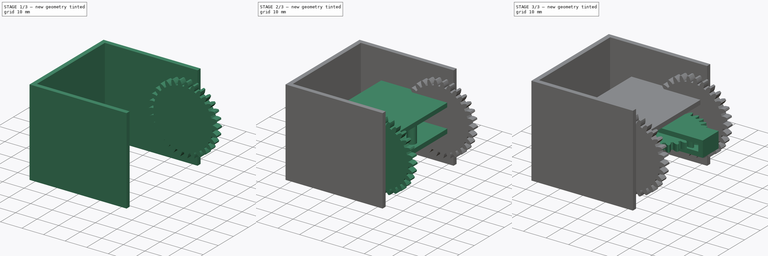
[diagram: build sequence overview — one tinted view per stage of 3, left to right]
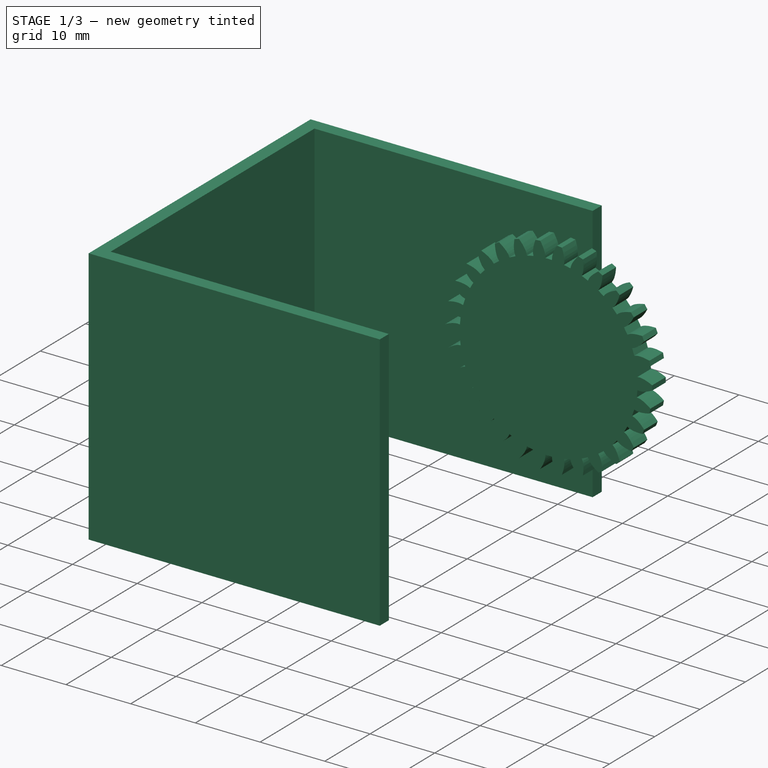
[diagram: stage 1 of 3 — iso view after this stage's code; geometry added in this stage tinted green]
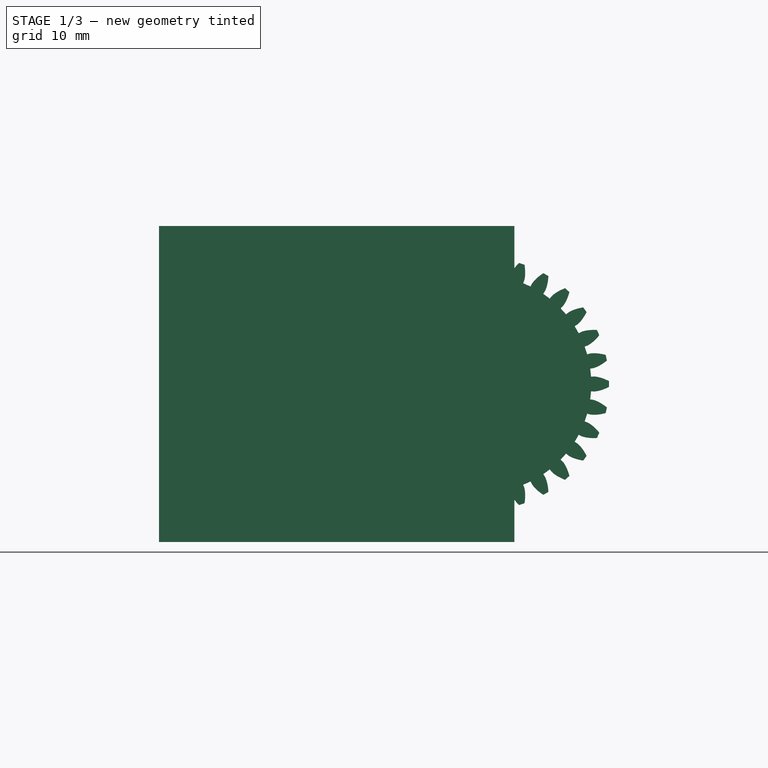
[diagram: stage 1 of 3 — front view after this stage's code; geometry added in this stage tinted green]
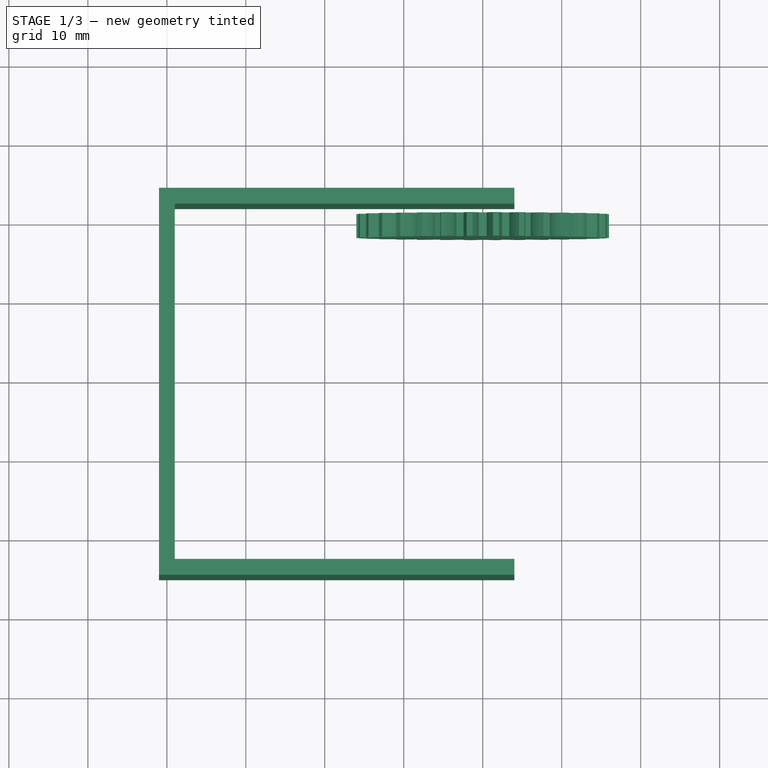
[diagram: stage 1 of 3 — top view after this stage's code; geometry added in this stage tinted green]
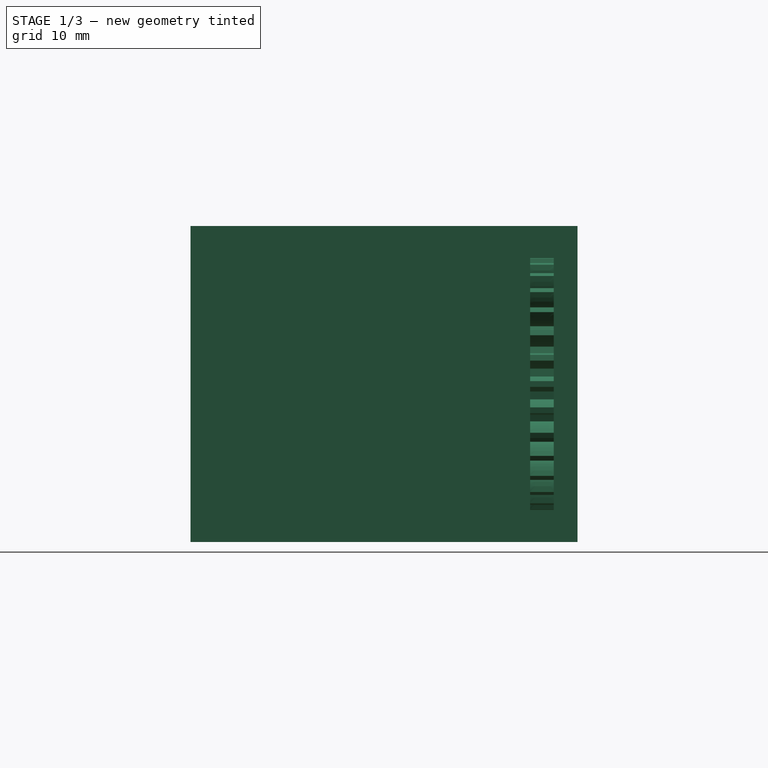
[diagram: stage 1 of 3 — right view after this stage's code; geometry added in this stage tinted green]
FCSTD DOCUMENT  (FreeCAD 0.20R29177 (Git))
Label: testFem
License: All rights reserved
LicenseURL: http://en.wikipedia.org/wiki/All_rights_reserved
objects: Part::FeaturePython×3, Sketcher::SketchObject×3, Part::Extrusion×3, Part::Cylinder×1
note: 10 computed .brp shape members not serialized (recipe doc carries the construction recipe); baked Part::Feature solids carry a one-line shape summary decoded from their .brp

FEATURE [Part::FeaturePython] InvoluteGear002  # WARN: FeaturePython — macro-defined, semantics opaque (R4)
  AttacherType = Attacher::AttachEngine3D
  Placement = pos=(0,18,1.39e-14) rot=(-1,0,0;1.5708rad)
  angular_backlash = 0
  backlash = 0
  beta = 0
  clearance = 0.25
  da = 32
  df = 27.5
  double_helix = false
  dw = 30
  head = 0
  head_fillet = 0
  height = 3
  module = 1
  numpoints = 6
  pressure_angle = 20
  properties_from_tool = false
  reversed_backlash = false
  root_fillet = 0
  shift = 0
  simple = false
  teeth = 30
  transverse_pitch = 3.14159
  undercut = false
  version = 0.0.4
  expr: angular_backlash = backlash / dw * 360° / pi
  expr: dw = teeth * module
FEATURE [Sketcher::SketchObject] Sketch002
  FullyConstrained = false
  sketch-geometry (8):
    g0: LineSegment StartX=4 StartY=22 StartZ=0 EndX=4 EndY=24 EndZ=0
    g1: LineSegment StartX=-39 StartY=-23 StartZ=0 EndX=4 EndY=-23 EndZ=0
    g2: LineSegment StartX=4 StartY=-23 StartZ=0 EndX=4 EndY=-25 EndZ=0
    g3: LineSegment StartX=4 StartY=-25 StartZ=0 EndX=-41 EndY=-25 EndZ=0
    g4: LineSegment StartX=-41 StartY=-25 StartZ=0 EndX=-41 EndY=24 EndZ=0
    g5: LineSegment StartX=-41 StartY=24 StartZ=0 EndX=4 EndY=24 EndZ=0
    g6: LineSegment StartX=-39 StartY=-23 StartZ=0 EndX=-39 EndY=22 EndZ=0
    g7: LineSegment StartX=-39 StartY=22 StartZ=0 EndX=4 EndY=22 EndZ=0
  constraints (16):
    c: Vertical(g0)
    c: Horizontal(g1)
    c: Coincident(g1,g2)
    c: Vertical(g2)
    c: Coincident(g2,g3)
    c: Horizontal(g3)
    c: Coincident(g3,g4)
    c: Vertical(g4)
    c: Coincident(g5,g4)
    c: Coincident(g5,g0)
    c: Horizontal(g5)
    c: Coincident(g1,g6)
    c: Vertical(g6)
    c: Coincident(g6,g7)
    c: Coincident(g7,g0)
    c: Horizontal(g7)
FEATURE [Part::Extrusion] Extrude002
  Base = -> Sketch002
  Dir = (0,0,1)
  DirMode = 2
  FaceMakerClass = Part::FaceMakerBullseye
  LengthFwd = 40
  LengthRev = 0
  Placement = pos=(0,0,-20) rot=(0,0,1;0rad)
  Solid = true
  Symmetric = false
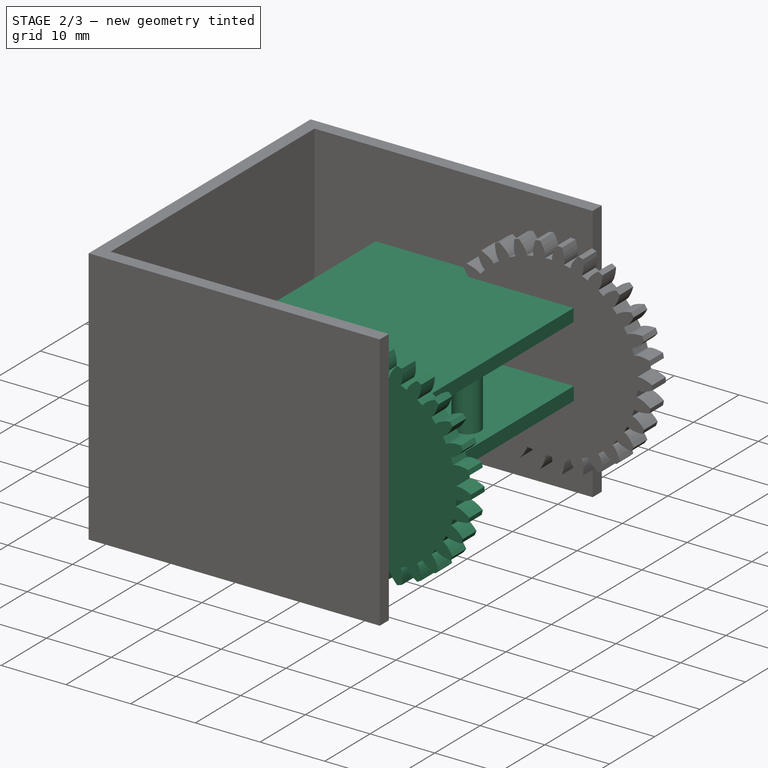
[diagram: stage 2 of 3 — iso view after this stage's code; geometry added in this stage tinted green]
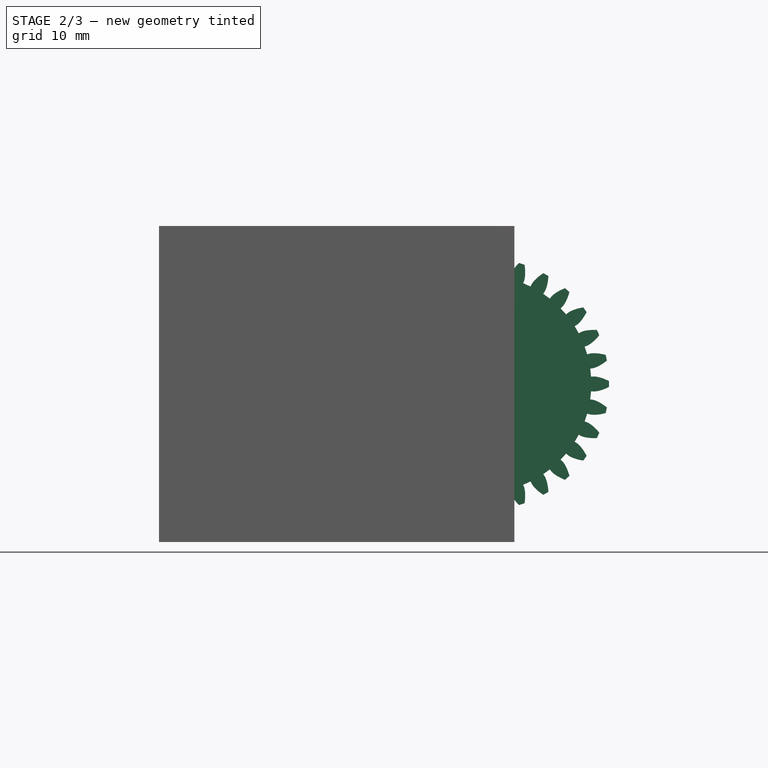
[diagram: stage 2 of 3 — front view after this stage's code; geometry added in this stage tinted green]
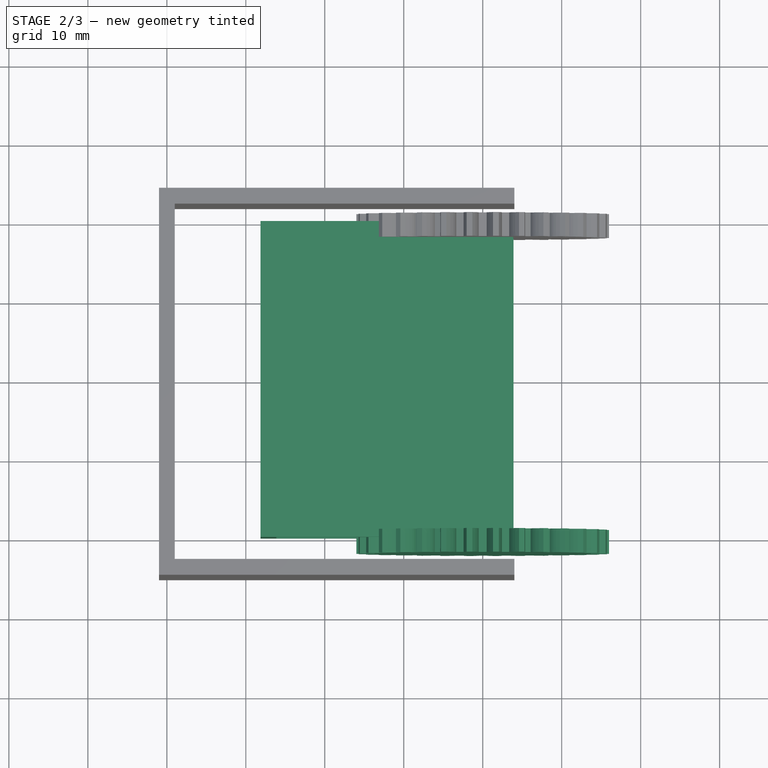
[diagram: stage 2 of 3 — top view after this stage's code; geometry added in this stage tinted green]
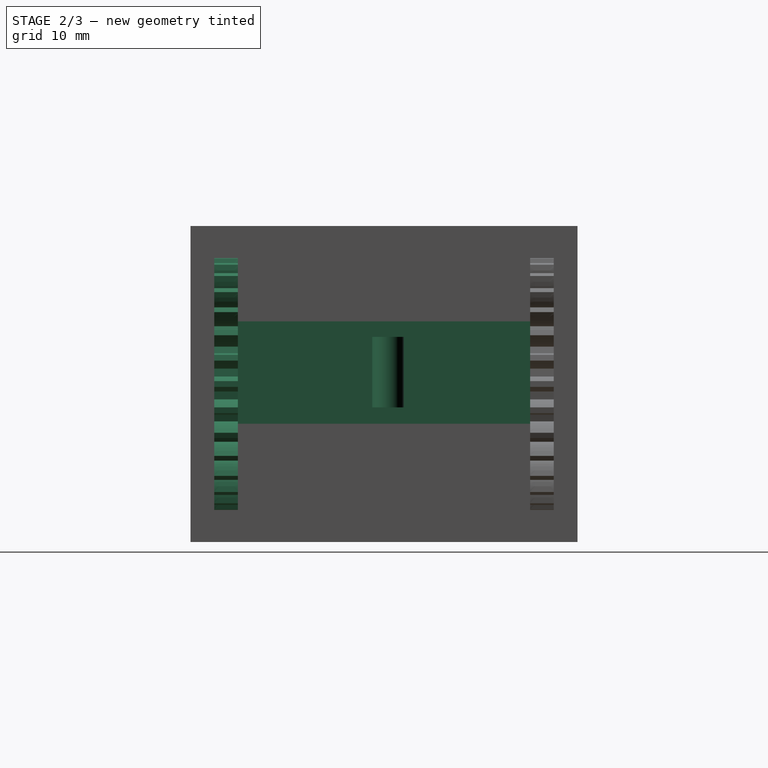
[diagram: stage 2 of 3 — right view after this stage's code; geometry added in this stage tinted green]
FEATURE [Part::Cylinder] Cylinder  label="Цилиндр"
  Angle = 360
  AttacherType = Attacher::AttachEngine3D
  FirstAngle = 0
  Height = 11
  Placement = pos=(0,0,-4) rot=(0,0,1;0rad)
  Radius = 2
  SecondAngle = 0
FEATURE [Sketcher::SketchObject] Sketch001
  FullyConstrained = false
  Placement = pos=(0,20,0) rot=(1,0,0;1.5708rad)
  sketch-geometry (8):
    g0: LineSegment StartX=3.85169 StartY=5.96548 StartZ=0 EndX=-26.13 EndY=5.96548 EndZ=0
    g1: LineSegment StartX=-26.13 StartY=5.96548 StartZ=0 EndX=-26.13 EndY=-2.96194 EndZ=0
    g2: LineSegment StartX=-26.13 StartY=-2.96194 StartZ=0 EndX=3.9033 EndY=-2.96194 EndZ=0
    g3: LineSegment StartX=3.9033 StartY=-2.96194 StartZ=0 EndX=3.9033 EndY=-5.02608 EndZ=0
    g4: LineSegment StartX=3.9033 StartY=-5.02608 StartZ=0 EndX=-28.1425 EndY=-5.02608 EndZ=0
    g5: LineSegment StartX=-28.1425 StartY=-5.02608 StartZ=0 EndX=-28.1425 EndY=7.92641 EndZ=0
    g6: LineSegment StartX=-28.1425 StartY=7.92641 StartZ=0 EndX=3.85169 EndY=7.92641 EndZ=0
    g7: LineSegment StartX=3.85169 StartY=7.92641 StartZ=0 EndX=3.85169 EndY=5.96548 EndZ=0
  constraints (16):
    c: Horizontal(g0)
    c: Coincident(g0,g1)
    c: Vertical(g1)
    c: Coincident(g1,g2)
    c: Horizontal(g2)
    c: Coincident(g2,g3)
    c: Vertical(g3)
    c: Coincident(g3,g4)
    c: Horizontal(g4)
    c: Coincident(g4,g5)
    c: Vertical(g5)
    c: Coincident(g5,g6)
    c: Horizontal(g6)
    c: Coincident(g6,g7)
    c: Coincident(g7,g0)
    c: Vertical(g7)
FEATURE [Part::FeaturePython] InvoluteGear001  # WARN: FeaturePython — macro-defined, semantics opaque (R4)
  AttacherType = Attacher::AttachEngine3D
  Placement = pos=(0,-22,5e-15) rot=(-1,0,0;1.5708rad)
  angular_backlash = 0
  backlash = 0
  beta = 0
  clearance = 0.25
  da = 32
  df = 27.5
  double_helix = false
  dw = 30
  head = 0
  head_fillet = 0
  height = 3
  module = 1
  numpoints = 6
  pressure_angle = 20
  properties_from_tool = false
  reversed_backlash = false
  root_fillet = 0
  shift = 0
  simple = false
  teeth = 30
  transverse_pitch = 3.14159
  undercut = false
  version = 0.0.4
  expr: angular_backlash = backlash / dw * 360° / pi
  expr: dw = teeth * module
FEATURE [Part::Extrusion] Extrude001
  Base = -> Sketch001
  Dir = (0,-1,2e-16)
  DirMode = 2
  FaceMakerClass = Part::FaceMakerBullseye
  LengthFwd = 40
  LengthRev = 0
  Solid = true
  Symmetric = false
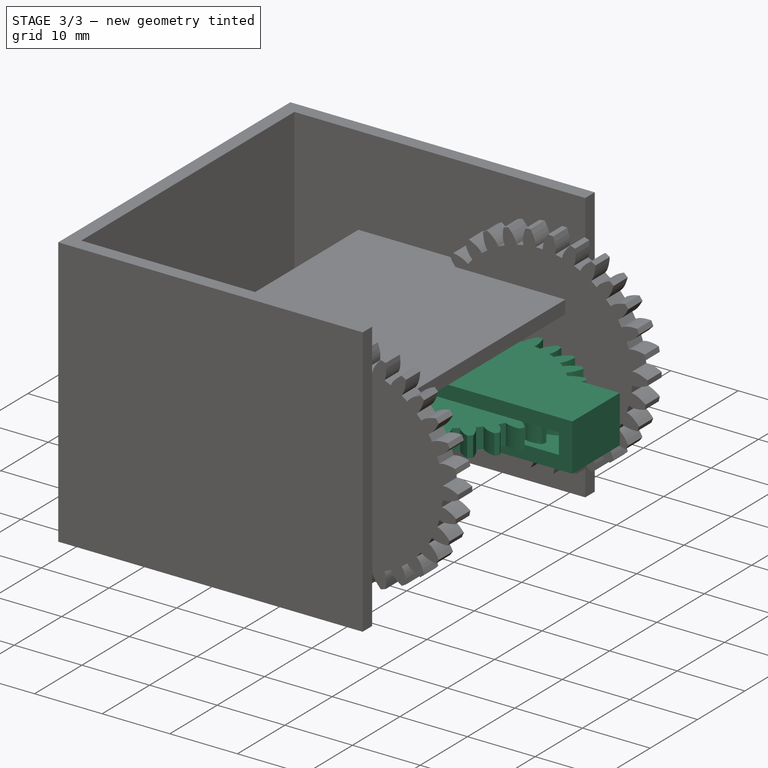
[diagram: stage 3 of 3 — iso view after this stage's code; geometry added in this stage tinted green]
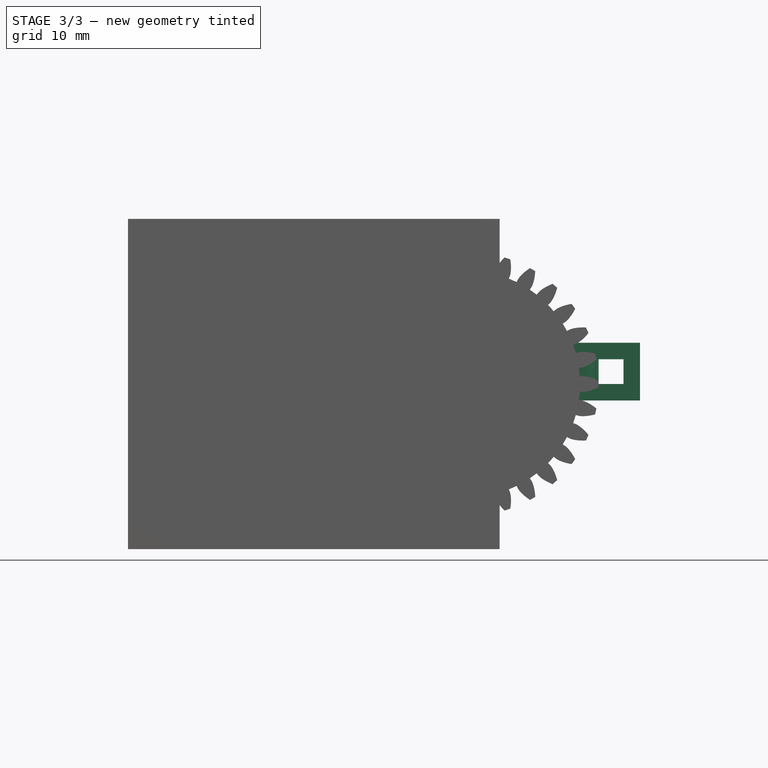
[diagram: stage 3 of 3 — front view after this stage's code; geometry added in this stage tinted green]
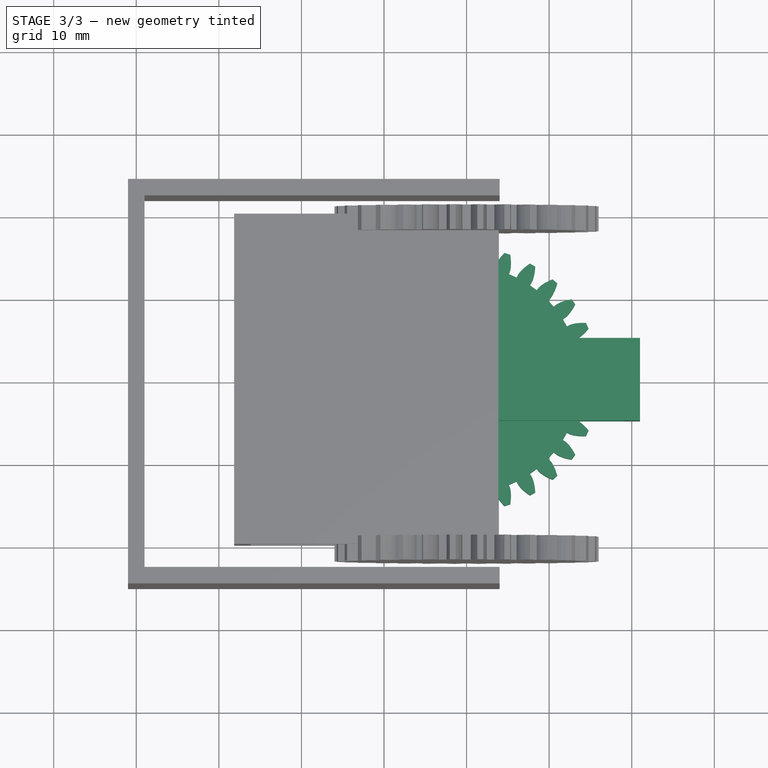
[diagram: stage 3 of 3 — top view after this stage's code; geometry added in this stage tinted green]
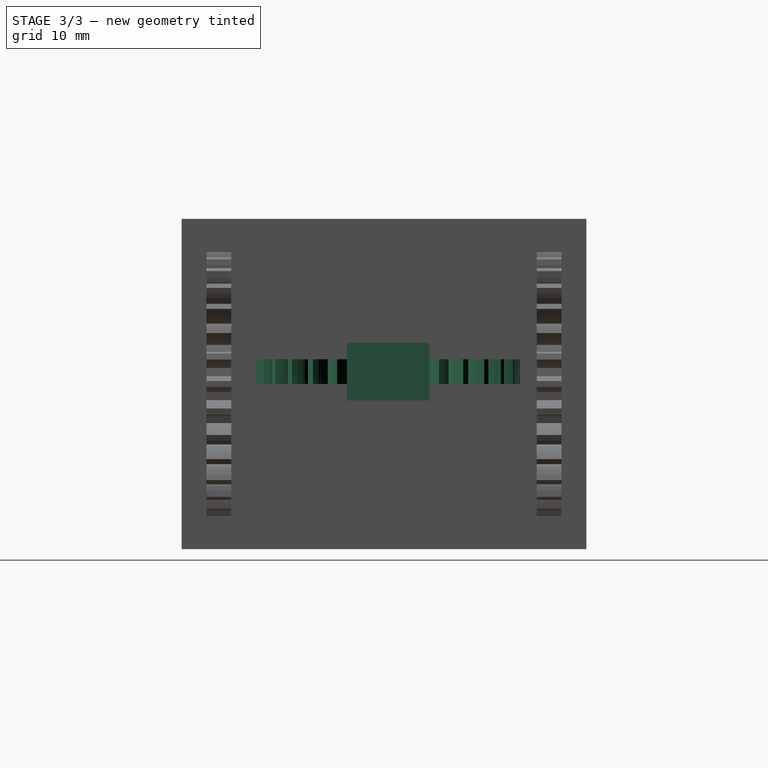
[diagram: stage 3 of 3 — right view after this stage's code; geometry added in this stage tinted green]
FEATURE [Part::FeaturePython] InvoluteGear  # WARN: FeaturePython — macro-defined, semantics opaque (R4)
  AttacherType = Attacher::AttachEngine3D
  angular_backlash = 0
  backlash = 0
  beta = 0
  clearance = 0.25
  da = 32
  df = 27.5
  double_helix = false
  dw = 30
  head = 0
  head_fillet = 0
  height = 3
  module = 1
  numpoints = 6
  pressure_angle = 20
  properties_from_tool = false
  reversed_backlash = false
  root_fillet = 0
  shift = 0
  simple = false
  teeth = 30
  transverse_pitch = 3.14159
  undercut = false
  version = 0.0.4
  expr: angular_backlash = backlash / dw * 360° / pi
  expr: dw = teeth * module
FEATURE [Sketcher::SketchObject] Sketch
  FullyConstrained = false
  MapMode = 3
  Placement = pos=(0,0,-4) rot=(1,0,0;1.5708rad)
  Support = -> [Cylinder]
  sketch-geometry (8):
    g0: LineSegment StartX=-4 StartY=7 StartZ=0 EndX=19 EndY=7 EndZ=0
    g1: LineSegment StartX=19 StartY=7 StartZ=0 EndX=19 EndY=4 EndZ=0
    g2: LineSegment StartX=-4 StartY=4 StartZ=0 EndX=19 EndY=4 EndZ=0
    g3: LineSegment StartX=-4 StartY=4 StartZ=0 EndX=-4 EndY=2 EndZ=0
    g4: LineSegment StartX=-4 StartY=2 StartZ=0 EndX=21 EndY=2 EndZ=0
    g5: LineSegment StartX=21 StartY=2 StartZ=0 EndX=21 EndY=9 EndZ=0
    g6: LineSegment StartX=21 StartY=9 StartZ=0 EndX=-4 EndY=9 EndZ=0
    g7: LineSegment StartX=-4 StartY=9 StartZ=0 EndX=-4 EndY=7 EndZ=0
  constraints (16):
    c: Horizontal(g0)
    c: Coincident(g0,g1)
    c: Vertical(g1)
    c: Coincident(g2,g1)
    c: Horizontal(g2)
    c: Coincident(g2,g3)
    c: Vertical(g3)
    c: Coincident(g3,g4)
    c: Horizontal(g4)
    c: Coincident(g4,g5)
    c: Vertical(g5)
    c: Coincident(g5,g6)
    c: Horizontal(g6)
    c: Coincident(g6,g7)
    c: Coincident(g7,g0)
    c: Vertical(g7)
FEATURE [Part::Extrusion] Extrude
  Base = -> Sketch
  Dir = (0,-1,0)
  DirMode = 0
  FaceMakerClass = Part::FaceMakerBullseye
  LengthFwd = 10
  LengthRev = 0
  Placement = pos=(0,5,0) rot=(0,0,1;0rad)
  Solid = true
  Symmetric = false
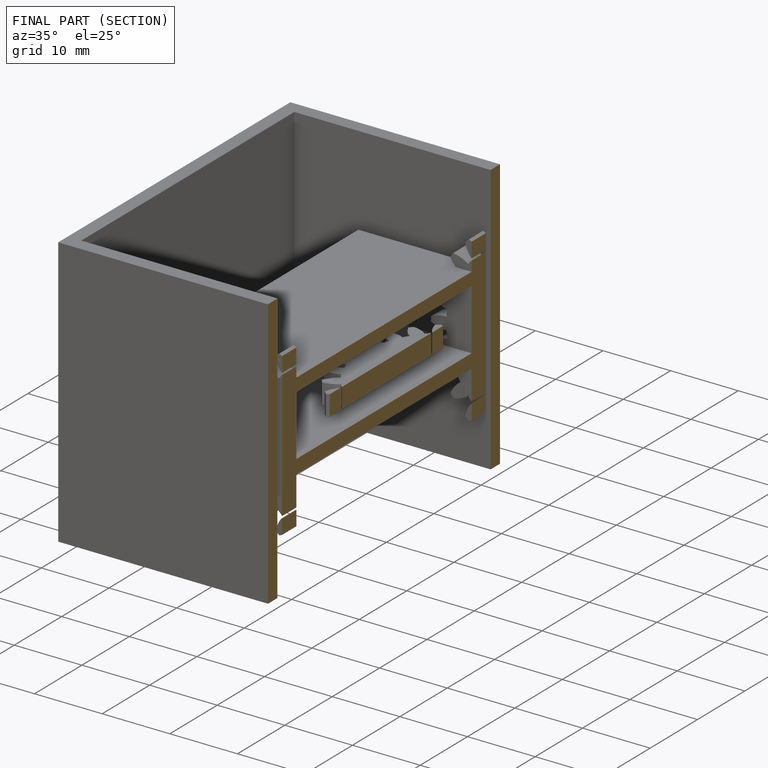
[diagram: finished part — half-section view (interior)]
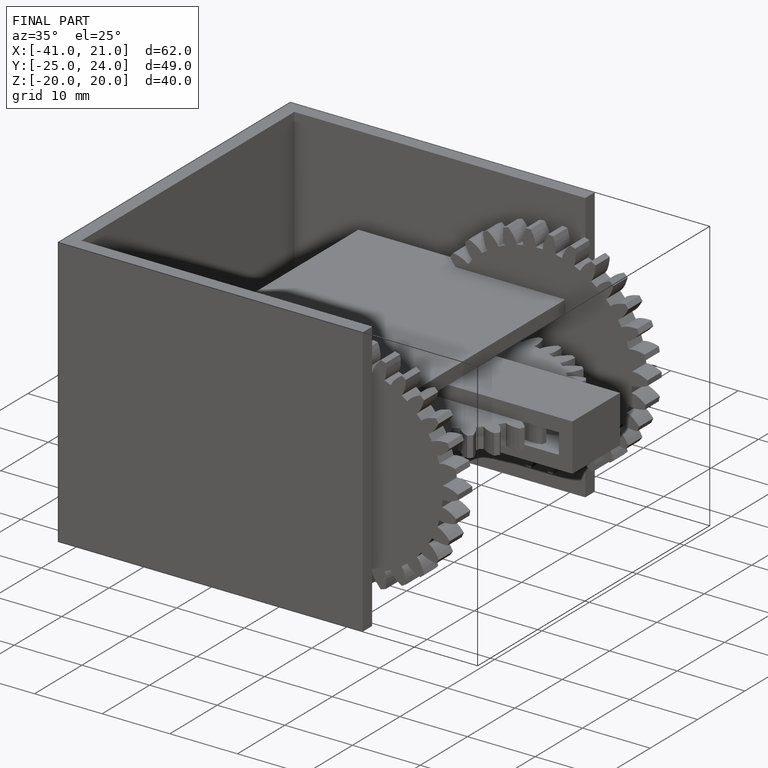
[diagram: finished part — iso view with bounding-box wireframe]
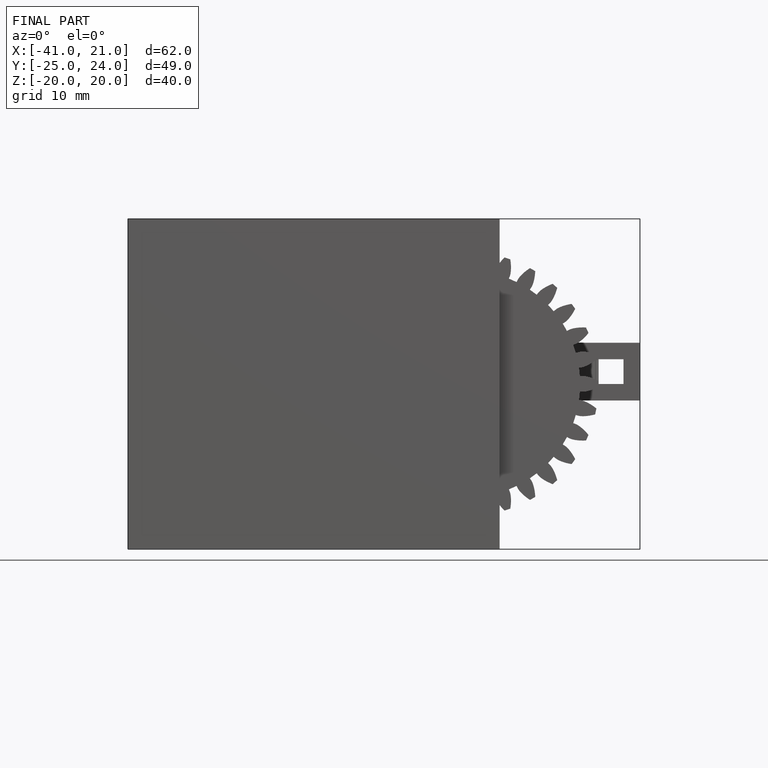
[diagram: finished part — front view with bounding-box wireframe]
